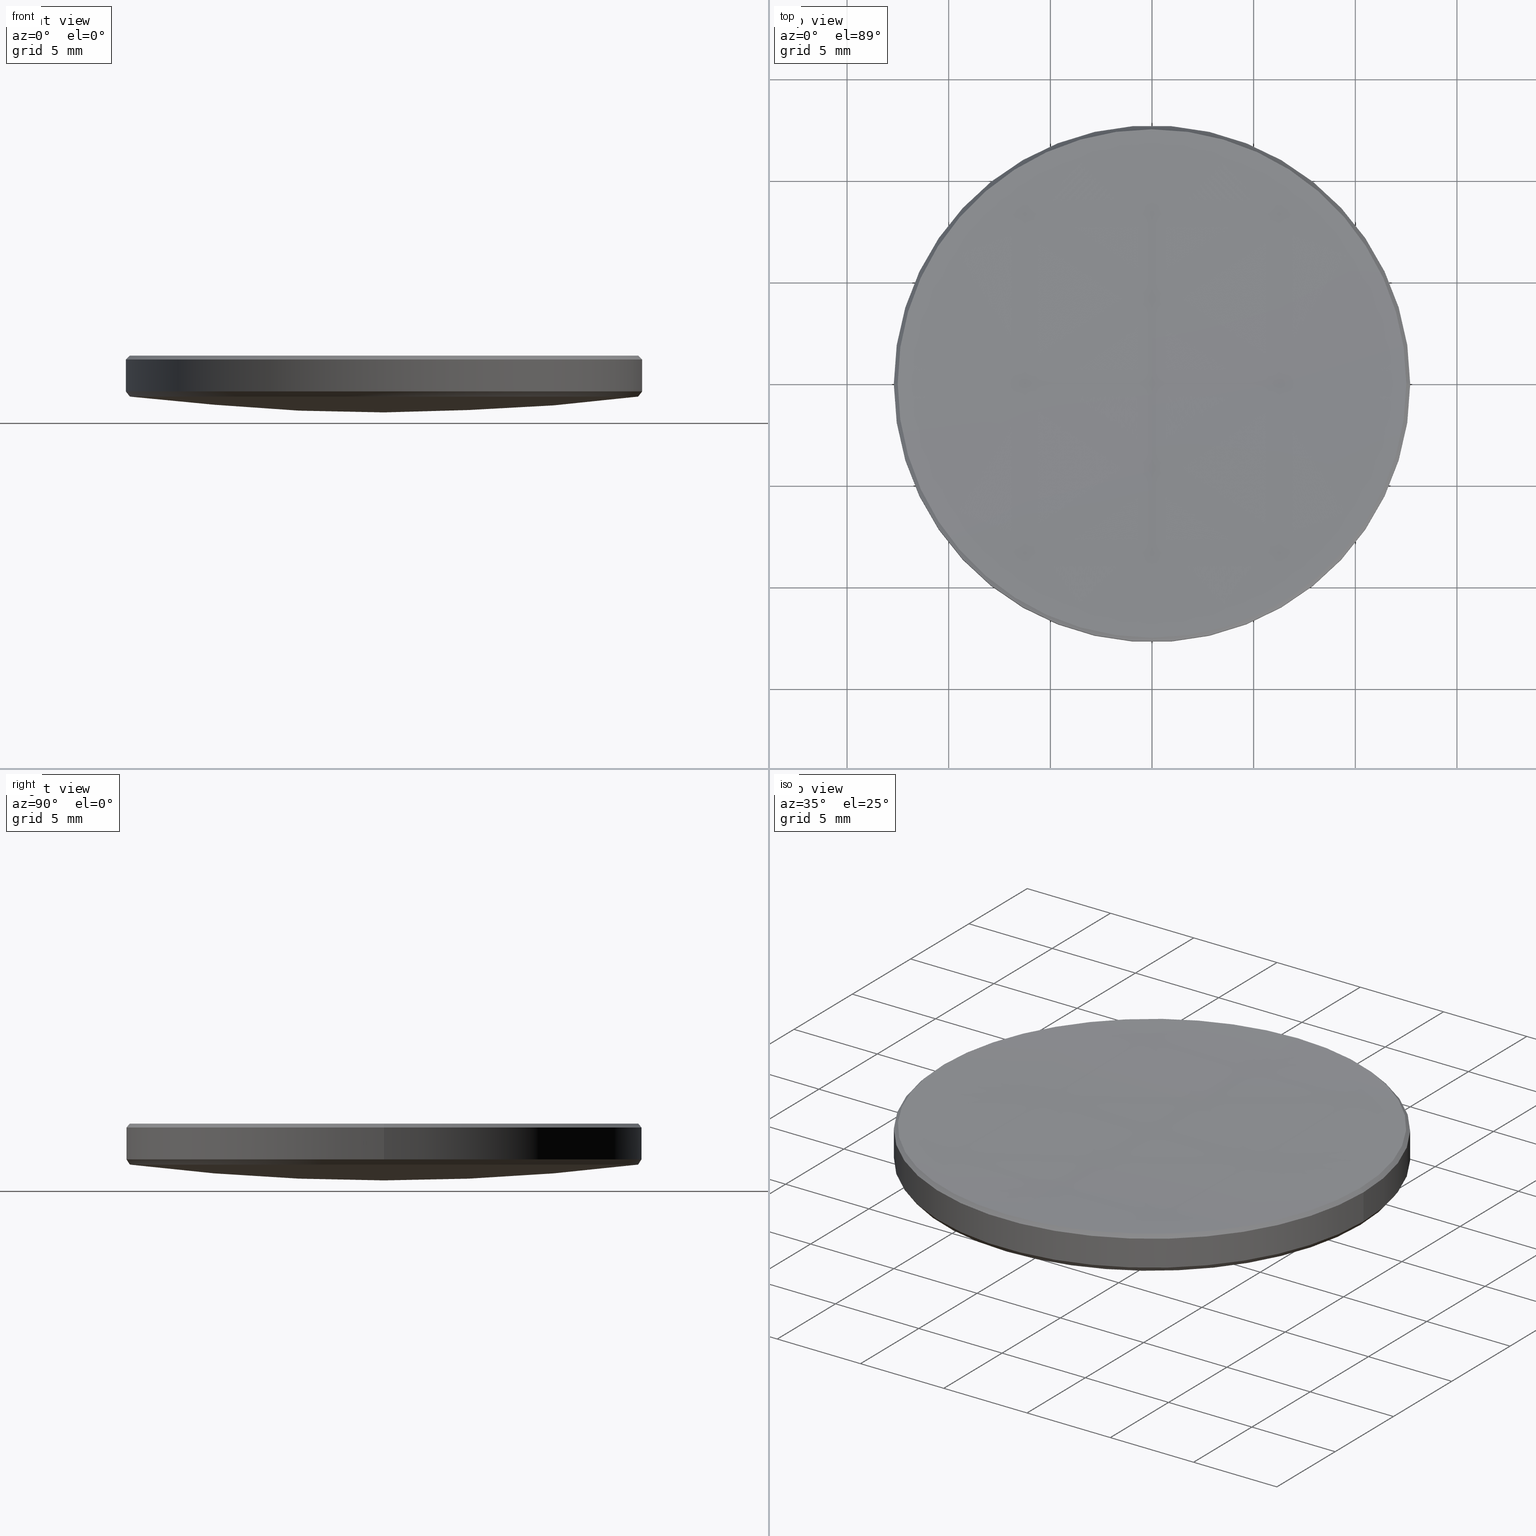
[diagram: canonical four-view strip — front | top / right | iso, engineering-drawing reading convention]
A machine part, canonical four-view strip (front | top / right | iso — engineering-drawing reading convention). The complete STEP part file that produces these views, byte-faithful:
ISO-10303-21;
HEADER;
FILE_DESCRIPTION (( 'STEP AP214' ),
    '1' );
FILE_NAME ('GLM1-025B-300-VIS.STEP',
    '2024-08-09T02:19:47',
    ( 'Windows User' ),
    ( 'P R C' ),
    'SwSTEP 2.0',
    'SolidWorks 2022',
    '' );
FILE_SCHEMA (( 'AUTOMOTIVE_DESIGN' ));
ENDSEC;

DATA;
#1 = VECTOR ( 'NONE', #92, 1000.000000000000000 ) ;
#2 = CIRCLE ( 'NONE', #8, 12.50176226215777930 ) ;
#3 = ORIENTED_EDGE ( 'NONE', *, *, #305, .F. ) ;
#4 = DIRECTION ( 'NONE',  ( 0.000000000000000000, 1.000000000000000000, 0.000000000000000000 ) ) ;
#5 = VERTEX_POINT ( 'NONE', #322 ) ;
#6 = DIRECTION ( 'NONE',  ( 1.000000000000000000, 0.000000000000000000, 0.000000000000000000 ) ) ;
#7 = AXIS2_PLACEMENT_3D ( 'NONE', #175, #145, #268 ) ;
#8 = AXIS2_PLACEMENT_3D ( 'NONE', #143, #242, #31 ) ;
#9 = ORIENTED_EDGE ( 'NONE', *, *, #236, .F. ) ;
#10 = DIRECTION ( 'NONE',  ( 0.000000000000000000, 0.000000000000000000, -1.000000000000000000 ) ) ;
#11 = ORIENTED_EDGE ( 'NONE', *, *, #291, .T. ) ;
#12 = CARTESIAN_POINT ( 'NONE',  ( 0.000000000000000000, 0.000000000000000000, 104.0874722430335027 ) ) ;
#13 = ORIENTED_EDGE ( 'NONE', *, *, #52, .F. ) ;
#14 = FACE_OUTER_BOUND ( 'NONE', #113, .T. ) ;
#15 = CIRCLE ( 'NONE', #109, 12.50838802109486103 ) ;
#16 = ORIENTED_EDGE ( 'NONE', *, *, #23, .F. ) ;
#17 = AXIS2_PLACEMENT_3D ( 'NONE', #60, #94, #266 ) ;
#18 = EDGE_CURVE ( 'NONE', #253, #30, #66, .T. ) ;
#19 =( NAMED_UNIT ( * ) PLANE_ANGLE_UNIT ( ) SI_UNIT ( $, .RADIAN. ) );
#20 = CARTESIAN_POINT ( 'NONE',  ( 0.000000000000000000, 6.177730778298823983E-15, 3.197472243033488759 ) ) ;
#21 = DIRECTION ( 'NONE',  ( -0.000000000000000000, -0.000000000000000000, 1.000000000000000000 ) ) ;
#22 = PRODUCT_DEFINITION_FORMATION_WITH_SPECIFIED_SOURCE ( '�κ�', '', #126, .NOT_KNOWN. ) ;
#23 = EDGE_CURVE ( 'NONE', #284, #35, #49, .T. ) ;
#24 = PRODUCT_DEFINITION_CONTEXT ( 'detailed design', #167, 'design' ) ;
#25 = AXIS2_PLACEMENT_3D ( 'NONE', #213, #59, #4 ) ;
#26 = EDGE_CURVE ( 'NONE', #191, #30, #300, .T. ) ;
#27 = VERTEX_POINT ( 'NONE', #42 ) ;
#28 = DIRECTION ( 'NONE',  ( -1.224646799147353454E-16, -1.000000000000000000, 0.000000000000000000 ) ) ;
#29 = ORIENTED_EDGE ( 'NONE', *, *, #26, .F. ) ;
#30 = VERTEX_POINT ( 'NONE', #319 ) ;
#31 = DIRECTION ( 'NONE',  ( 1.000000000000000000, 0.000000000000000000, 0.000000000000000000 ) ) ;
#32 = EDGE_LOOP ( 'NONE', ( #187, #208, #118, #144, #243 ) ) ;
#33 = PRODUCT_DEFINITION ( 'δ֪', '', #22, #24 ) ;
#34 = SPHERICAL_SURFACE ( 'NONE', #329, 100.8900000000000006 ) ;
#35 = VERTEX_POINT ( 'NONE', #64 ) ;
#36 = CARTESIAN_POINT ( 'NONE',  ( -12.69999999999999929, 1.555301434917138433E-15, 4.230902662384877999 ) ) ;
#37 = DIRECTION ( 'NONE',  ( 0.000000000000000000, 0.000000000000000000, -1.000000000000000000 ) ) ;
#38 = ORIENTED_EDGE ( 'NONE', *, *, #105, .F. ) ;
#39 = CARTESIAN_POINT ( 'NONE',  ( 12.50838802109488590, 1.531835735252694865E-15, 5.991611978905131863 ) ) ;
#40 = CARTESIAN_POINT ( 'NONE',  ( 0.000000000000000000, 0.000000000000000000, 104.0874722430335027 ) ) ;
#41 = CONICAL_SURFACE ( 'NONE', #115, 12.69999999999999929, 0.6591836576304348494 ) ;
#42 = CARTESIAN_POINT ( 'NONE',  ( -12.50176226215777930, 1.543162874361204192E-15, 3.975045240485544529 ) ) ;
#43 = DIRECTION ( 'NONE',  ( -0.000000000000000000, -0.000000000000000000, 1.000000000000000000 ) ) ;
#44 =( NAMED_UNIT ( * ) PLANE_ANGLE_UNIT ( ) SI_UNIT ( $, .RADIAN. ) );
#45 = FACE_OUTER_BOUND ( 'NONE', #238, .T. ) ;
#46 = FILL_AREA_STYLE ('',( #51 ) ) ;
#47 = CARTESIAN_POINT ( 'NONE',  ( 0.000000000000000000, 1.764716037571336072E-14, 5.720040983603680296 ) ) ;
#48 = ADVANCED_BREP_SHAPE_REPRESENTATION ( 'GLM1-025B-300-VIS', ( #135, #95 ), #85 ) ;
#49 = CIRCLE ( 'NONE', #183, 12.50838802109486103 ) ;
#50 = COLOUR_RGB ( '',1.000000000000000000, 1.000000000000000000, 1.000000000000000000 ) ;
#51 = FILL_AREA_STYLE_COLOUR ( '', #50 ) ;
#52 = EDGE_CURVE ( 'NONE', #284, #58, #70, .T. ) ;
#53 = ORIENTED_EDGE ( 'NONE', *, *, #97, .T. ) ;
#54 = EDGE_CURVE ( 'NONE', #58, #191, #244, .T. ) ;
#55 = ORIENTED_EDGE ( 'NONE', *, *, #105, .T. ) ;
#56 = CIRCLE ( 'NONE', #89, 288.1999999999999886 ) ;
#57 = FACE_OUTER_BOUND ( 'NONE', #216, .T. ) ;
#58 = VERTEX_POINT ( 'NONE', #100 ) ;
#59 = DIRECTION ( 'NONE',  ( -1.000000000000000000, 0.000000000000000000, 0.000000000000000000 ) ) ;
#60 = CARTESIAN_POINT ( 'NONE',  ( 0.000000000000000000, 0.000000000000000000, 5.800000000000027356 ) ) ;
#61 = ADVANCED_FACE ( 'NONE', ( #217 ), #202, .T. ) ;
#62 = ORIENTED_EDGE ( 'NONE', *, *, #114, .T. ) ;
#63 = CARTESIAN_POINT ( 'NONE',  ( 0.000000000000000000, 0.000000000000000000, 3.975045240485544529 ) ) ;
#64 = CARTESIAN_POINT ( 'NONE',  ( -1.531835735252623078E-15, -12.50838802109430148, 5.991611978905075908 ) ) ;
#65 = DIRECTION ( 'NONE',  ( 0.000000000000000000, 1.000000000000000000, 0.000000000000000000 ) ) ;
#66 = LINE ( 'NONE', #267, #1 ) ;
#67 = LINE ( 'NONE', #39, #138 ) ;
#68 =( NAMED_UNIT ( * ) PLANE_ANGLE_UNIT ( ) SI_UNIT ( $, .RADIAN. ) );
#69 = EDGE_LOOP ( 'NONE', ( #3, #271, #11, #232 ) ) ;
#70 = LINE ( 'NONE', #127, #289 ) ;
#71 =( NAMED_UNIT ( * ) SI_UNIT ( $, .STERADIAN. ) SOLID_ANGLE_UNIT ( ) );
#72 = CIRCLE ( 'NONE', #292, 12.69999999999999929 ) ;
#73 = DIRECTION ( 'NONE',  ( -0.000000000000000000, -0.000000000000000000, -1.000000000000000000 ) ) ;
#74 = SPHERICAL_SURFACE ( 'NONE', #205, 100.8900000000000006 ) ;
#75 = DIRECTION ( 'NONE',  ( 0.7071067811865635599, 8.659560562355128841E-17, -0.7071067811865314745 ) ) ;
#76 = APPLICATION_PROTOCOL_DEFINITION ( 'draft international standard', 'automotive_design', 1998, #167 ) ;
#77 = EDGE_CURVE ( 'NONE', #27, #191, #146, .T. ) ;
#78 = CARTESIAN_POINT ( 'NONE',  ( 0.000000000000000000, 0.000000000000000000, 5.991611978905075908 ) ) ;
#79 = CONICAL_SURFACE ( 'NONE', #177, 12.50838802109488590, 0.7853981633974710386 ) ;
#80 = AXIS2_PLACEMENT_3D ( 'NONE', #63, #184, #186 ) ;
#81 = ADVANCED_FACE ( 'NONE', ( #45 ), #93, .T. ) ;
#82 = UNCERTAINTY_MEASURE_WITH_UNIT (LENGTH_MEASURE( 1.000000000000000082E-05 ), #221, 'distance_accuracy_value', 'NONE');
#83 = CIRCLE ( 'NONE', #254, 12.50176226215777930 ) ;
#84 = CIRCLE ( 'NONE', #250, 12.50838802109486103 ) ;
#85 =( GEOMETRIC_REPRESENTATION_CONTEXT ( 3 ) GLOBAL_UNCERTAINTY_ASSIGNED_CONTEXT ( ( #233 ) ) GLOBAL_UNIT_ASSIGNED_CONTEXT ( ( #303, #68, #71 ) ) REPRESENTATION_CONTEXT ( 'NONE', 'WORKASPACE' ) );
#86 = EDGE_LOOP ( 'NONE', ( #111, #257, #235, #164 ) ) ;
#87 = CARTESIAN_POINT ( 'NONE',  ( -12.69999999999999929, 0.000000000000000000, 4.230902662384877999 ) ) ;
#88 = VERTEX_POINT ( 'NONE', #47 ) ;
#89 = AXIS2_PLACEMENT_3D ( 'NONE', #158, #259, #313 ) ;
#90 = DIRECTION ( 'NONE',  ( 1.000000000000000000, 0.000000000000000000, 0.000000000000000000 ) ) ;
#91 = VERTEX_POINT ( 'NONE', #20 ) ;
#92 = DIRECTION ( 'NONE',  ( -0.000000000000000000, -0.000000000000000000, -1.000000000000000000 ) ) ;
#93 = CONICAL_SURFACE ( 'NONE', #252, 12.50838802109488590, 0.7853981633974710386 ) ;
#94 = DIRECTION ( 'NONE',  ( 0.000000000000000000, 0.000000000000000000, -1.000000000000000000 ) ) ;
#95 = AXIS2_PLACEMENT_3D ( 'NONE', #104, #151, #199 ) ;
#96 = ORIENTED_EDGE ( 'NONE', *, *, #178, .F. ) ;
#97 = EDGE_CURVE ( 'NONE', #5, #30, #106, .T. ) ;
#98 = CARTESIAN_POINT ( 'NONE',  ( 0.000000000000000000, 0.000000000000000000, 3.975045240485544529 ) ) ;
#99 = ORIENTED_EDGE ( 'NONE', *, *, #195, .F. ) ;
#100 = CARTESIAN_POINT ( 'NONE',  ( -12.69999999999999929, 0.000000000000000000, 5.800000000000027356 ) ) ;
#101 = PRODUCT_DEFINITION_SHAPE ( 'NONE', 'NONE',  #33 ) ;
#102 =( GEOMETRIC_REPRESENTATION_CONTEXT ( 3 ) GLOBAL_UNCERTAINTY_ASSIGNED_CONTEXT ( ( #82 ) ) GLOBAL_UNIT_ASSIGNED_CONTEXT ( ( #221, #19, #249 ) ) REPRESENTATION_CONTEXT ( 'NONE', 'WORKASPACE' ) );
#103 = CARTESIAN_POINT ( 'NONE',  ( -12.69999999999999929, 0.000000000000000000, 10.00000000000000000 ) ) ;
#104 = CARTESIAN_POINT ( 'NONE',  ( 0.000000000000000000, 0.000000000000000000, 0.000000000000000000 ) ) ;
#105 = EDGE_CURVE ( 'NONE', #210, #27, #83, .T. ) ;
#106 = LINE ( 'NONE', #222, #204 ) ;
#107 = CLOSED_SHELL ( 'NONE', ( #156, #108, #206, #281, #332, #61, #312, #181, #120, #81 ) ) ;
#108 = ADVANCED_FACE ( 'NONE', ( #304 ), #41, .T. ) ;
#109 = AXIS2_PLACEMENT_3D ( 'NONE', #188, #310, #6 ) ;
#110 = CARTESIAN_POINT ( 'NONE',  ( 0.000000000000000000, 12.50176226215772068, 3.975045240485544529 ) ) ;
#111 = ORIENTED_EDGE ( 'NONE', *, *, #18, .F. ) ;
#112 = CARTESIAN_POINT ( 'NONE',  ( -1.531024313805262852E-15, -12.50176226215772068, 3.975045240485544529 ) ) ;
#113 = EDGE_LOOP ( 'NONE', ( #263, #159, #230, #317 ) ) ;
#114 = EDGE_CURVE ( 'NONE', #35, #189, #84, .T. ) ;
#115 = AXIS2_PLACEMENT_3D ( 'NONE', #325, #43, #298 ) ;
#116 = DIRECTION ( 'NONE',  ( -0.000000000000000000, -0.000000000000000000, 1.000000000000000000 ) ) ;
#117 = ORIENTED_EDGE ( 'NONE', *, *, #178, .T. ) ;
#118 = ORIENTED_EDGE ( 'NONE', *, *, #280, .F. ) ;
#119 = CARTESIAN_POINT ( 'NONE',  ( 12.50838802109486103, 1.543568585084915170E-15, 5.991611978905075908 ) ) ;
#120 = ADVANCED_FACE ( 'NONE', ( #197 ), #278, .T. ) ;
#121 = VERTEX_POINT ( 'NONE', #192 ) ;
#122 = AXIS2_PLACEMENT_3D ( 'NONE', #273, #166, #290 ) ;
#123 = ORIENTED_EDGE ( 'NONE', *, *, #305, .T. ) ;
#124 = FILL_AREA_STYLE_COLOUR ( '', #198 ) ;
#125 = DIRECTION ( 'NONE',  ( -0.7071067811865635599, 0.000000000000000000, -0.7071067811865314745 ) ) ;
#126 = PRODUCT ( 'GLM1-025B-300-VIS', 'GLM1-025B-300-VIS', '', ( #296 ) ) ;
#127 = CARTESIAN_POINT ( 'NONE',  ( -12.50838802109488590, 0.000000000000000000, 5.991611978905131863 ) ) ;
#128 = DIRECTION ( 'NONE',  ( -0.000000000000000000, -0.000000000000000000, -1.000000000000000000 ) ) ;
#129 = CIRCLE ( 'NONE', #314, 12.69999999999999929 ) ;
#130 = MECHANICAL_DESIGN_GEOMETRIC_PRESENTATION_REPRESENTATION (  '', ( #224 ), #102 ) ;
#131 = ORIENTED_EDGE ( 'NONE', *, *, #212, .F. ) ;
#132 = FACE_OUTER_BOUND ( 'NONE', #185, .T. ) ;
#133 = EDGE_CURVE ( 'NONE', #27, #297, #262, .T. ) ;
#134 = EDGE_LOOP ( 'NONE', ( #294, #38, #9, #53, #29 ) ) ;
#135 = MANIFOLD_SOLID_BREP ( '����1', #107 ) ;
#136 = CARTESIAN_POINT ( 'NONE',  ( 0.000000000000000000, 0.000000000000000000, 4.230902662384877999 ) ) ;
#137 = ORIENTED_EDGE ( 'NONE', *, *, #152, .F. ) ;
#138 = VECTOR ( 'NONE', #75, 1000.000000000000000 ) ;
#139 = FACE_OUTER_BOUND ( 'NONE', #69, .T. ) ;
#140 = ORIENTED_EDGE ( 'NONE', *, *, #172, .T. ) ;
#141 = CARTESIAN_POINT ( 'NONE',  ( 0.000000000000000000, 0.000000000000000000, 5.991611978905075908 ) ) ;
#142 = DIRECTION ( 'NONE',  ( -0.6124717436197836262, 7.500615603921663668E-17, 0.7904924814742655403 ) ) ;
#143 = CARTESIAN_POINT ( 'NONE',  ( 0.000000000000000000, 0.000000000000000000, 3.975045240485544529 ) ) ;
#144 = ORIENTED_EDGE ( 'NONE', *, *, #97, .F. ) ;
#145 = DIRECTION ( 'NONE',  ( -0.000000000000000000, -0.000000000000000000, 1.000000000000000000 ) ) ;
#146 = LINE ( 'NONE', #36, #228 ) ;
#147 =( NAMED_UNIT ( * ) SI_UNIT ( $, .STERADIAN. ) SOLID_ANGLE_UNIT ( ) );
#148 = CARTESIAN_POINT ( 'NONE',  ( 0.000000000000000000, 0.000000000000000000, 10.00000000000000000 ) ) ;
#149 = DIRECTION ( 'NONE',  ( 0.000000000000000000, 0.000000000000000000, -1.000000000000000000 ) ) ;
#150 = CIRCLE ( 'NONE', #80, 12.50176226215777930 ) ;
#151 = DIRECTION ( 'NONE',  ( 0.000000000000000000, 0.000000000000000000, 1.000000000000000000 ) ) ;
#152 = EDGE_CURVE ( 'NONE', #189, #253, #67, .T. ) ;
#153 = ORIENTED_EDGE ( 'NONE', *, *, #114, .F. ) ;
#154 = ORIENTED_EDGE ( 'NONE', *, *, #220, .F. ) ;
#155 = CIRCLE ( 'NONE', #264, 288.1999999999999886 ) ;
#156 = ADVANCED_FACE ( 'NONE', ( #225 ), #79, .T. ) ;
#157 = SPHERICAL_SURFACE ( 'NONE', #306, 288.1999999999999886 ) ;
#158 = CARTESIAN_POINT ( 'NONE',  ( 0.000000000000000000, 0.000000000000000000, 293.9200409836037124 ) ) ;
#159 = ORIENTED_EDGE ( 'NONE', *, *, #18, .T. ) ;
#160 = CARTESIAN_POINT ( 'NONE',  ( -12.50838802109486103, 0.000000000000000000, 5.991611978905075908 ) ) ;
#161 = AXIS2_PLACEMENT_3D ( 'NONE', #194, #128, #241 ) ;
#162 = MECHANICAL_DESIGN_GEOMETRIC_PRESENTATION_REPRESENTATION (  '', ( #173 ), #229 ) ;
#163 = DIRECTION ( 'NONE',  ( 1.000000000000000000, 0.000000000000000000, 0.000000000000000000 ) ) ;
#164 = ORIENTED_EDGE ( 'NONE', *, *, #26, .T. ) ;
#165 = DIRECTION ( 'NONE',  ( 1.000000000000000000, 0.000000000000000000, 0.000000000000000000 ) ) ;
#166 = DIRECTION ( 'NONE',  ( -0.000000000000000000, -0.000000000000000000, 1.000000000000000000 ) ) ;
#167 = APPLICATION_CONTEXT ( 'automotive_design' ) ;
#168 = SURFACE_STYLE_FILL_AREA ( #302 ) ;
#169 = DIRECTION ( 'NONE',  ( -0.000000000000000000, -0.000000000000000000, 1.000000000000000000 ) ) ;
#170 = DIRECTION ( 'NONE',  ( 1.000000000000000000, 0.000000000000000000, 0.000000000000000000 ) ) ;
#171 = PRESENTATION_STYLE_ASSIGNMENT (( #272 ) ) ;
#172 = EDGE_CURVE ( 'NONE', #189, #121, #179, .T. ) ;
#173 = STYLED_ITEM ( 'NONE', ( #171 ), #48 ) ;
#174 = DIRECTION ( 'NONE',  ( 0.000000000000000000, 1.000000000000000000, 0.000000000000000000 ) ) ;
#175 = CARTESIAN_POINT ( 'NONE',  ( 0.000000000000000000, 0.000000000000000000, 4.230902662384877999 ) ) ;
#176 = SHAPE_DEFINITION_REPRESENTATION ( #101, #48 ) ;
#177 = AXIS2_PLACEMENT_3D ( 'NONE', #215, #318, #209 ) ;
#178 = EDGE_CURVE ( 'NONE', #121, #284, #15, .T. ) ;
#179 = CIRCLE ( 'NONE', #321, 12.50838802109486103 ) ;
#180 = ORIENTED_EDGE ( 'NONE', *, *, #152, .T. ) ;
#181 = ADVANCED_FACE ( 'NONE', ( #57 ), #316, .F. ) ;
#182 = ORIENTED_EDGE ( 'NONE', *, *, #220, .T. ) ;
#183 = AXIS2_PLACEMENT_3D ( 'NONE', #141, #169, #240 ) ;
#184 = DIRECTION ( 'NONE',  ( 0.000000000000000000, 0.000000000000000000, -1.000000000000000000 ) ) ;
#185 = EDGE_LOOP ( 'NONE', ( #131, #182, #62, #140 ) ) ;
#186 = DIRECTION ( 'NONE',  ( 1.000000000000000000, 0.000000000000000000, 0.000000000000000000 ) ) ;
#187 = ORIENTED_EDGE ( 'NONE', *, *, #133, .F. ) ;
#188 = CARTESIAN_POINT ( 'NONE',  ( 0.000000000000000000, 0.000000000000000000, 5.991611978905075908 ) ) ;
#189 = VERTEX_POINT ( 'NONE', #119 ) ;
#190 = CARTESIAN_POINT ( 'NONE',  ( 0.000000000000000000, 0.000000000000000000, 5.991611978905075908 ) ) ;
#191 = VERTEX_POINT ( 'NONE', #87 ) ;
#192 = CARTESIAN_POINT ( 'NONE',  ( 0.000000000000000000, 12.50838802109430148, 5.991611978905075908 ) ) ;
#193 = ORIENTED_EDGE ( 'NONE', *, *, #269, .F. ) ;
#194 = CARTESIAN_POINT ( 'NONE',  ( 0.000000000000000000, 0.000000000000000000, 10.00000000000000000 ) ) ;
#195 = EDGE_CURVE ( 'NONE', #91, #297, #218, .T. ) ;
#196 = DIRECTION ( 'NONE',  ( -0.000000000000000000, -0.000000000000000000, -1.000000000000000000 ) ) ;
#197 = FACE_OUTER_BOUND ( 'NONE', #134, .T. ) ;
#198 = COLOUR_RGB ( '',1.000000000000000000, 1.000000000000000000, 1.000000000000000000 ) ;
#199 = DIRECTION ( 'NONE',  ( 1.000000000000000000, 0.000000000000000000, 0.000000000000000000 ) ) ;
#200 = CARTESIAN_POINT ( 'NONE',  ( 0.000000000000000000, 0.000000000000000000, 3.975045240485544529 ) ) ;
#201 = APPLICATION_PROTOCOL_DEFINITION ( 'draft international standard', 'automotive_design', 1998, #258 ) ;
#202 = CYLINDRICAL_SURFACE ( 'NONE', #161, 12.69999999999999929 ) ;
#203 = PRODUCT_RELATED_PRODUCT_CATEGORY ( 'part', '', ( #126 ) ) ;
#204 = VECTOR ( 'NONE', #223, 1000.000000000000000 ) ;
#205 = AXIS2_PLACEMENT_3D ( 'NONE', #40, #251, #174 ) ;
#206 = ADVANCED_FACE ( 'NONE', ( #132 ), #157, .F. ) ;
#207 = CARTESIAN_POINT ( 'NONE',  ( 0.000000000000000000, 0.000000000000000000, 104.0874722430335027 ) ) ;
#208 = ORIENTED_EDGE ( 'NONE', *, *, #77, .T. ) ;
#209 = DIRECTION ( 'NONE',  ( -1.000000000000000000, 0.000000000000000000, 0.000000000000000000 ) ) ;
#210 = VERTEX_POINT ( 'NONE', #112 ) ;
#211 = FACE_OUTER_BOUND ( 'NONE', #311, .T. ) ;
#212 = EDGE_CURVE ( 'NONE', #88, #121, #155, .T. ) ;
#213 = CARTESIAN_POINT ( 'NONE',  ( 0.000000000000000000, 0.000000000000000000, 293.9200409836037124 ) ) ;
#214 = ORIENTED_EDGE ( 'NONE', *, *, #52, .T. ) ;
#215 = CARTESIAN_POINT ( 'NONE',  ( 0.000000000000000000, 0.000000000000000000, 5.991611978905131863 ) ) ;
#216 = EDGE_LOOP ( 'NONE', ( #154, #219, #117, #309 ) ) ;
#217 = FACE_OUTER_BOUND ( 'NONE', #86, .T. ) ;
#218 = CIRCLE ( 'NONE', #328, 100.8900000000000006 ) ;
#219 = ORIENTED_EDGE ( 'NONE', *, *, #212, .T. ) ;
#220 = EDGE_CURVE ( 'NONE', #88, #35, #56, .T. ) ;
#221 =( LENGTH_UNIT ( ) NAMED_UNIT ( * ) SI_UNIT ( .MILLI., .METRE. ) );
#222 = CARTESIAN_POINT ( 'NONE',  ( 12.69999999999999929, 0.000000000000000000, 4.230902662384877999 ) ) ;
#223 = DIRECTION ( 'NONE',  ( 0.6124717436197836262, 0.000000000000000000, 0.7904924814742655403 ) ) ;
#224 = STYLED_ITEM ( 'NONE', ( #331 ), #135 ) ;
#225 = FACE_OUTER_BOUND ( 'NONE', #260, .T. ) ;
#226 = AXIS2_PLACEMENT_3D ( 'NONE', #98, #323, #326 ) ;
#227 = EDGE_CURVE ( 'NONE', #58, #253, #129, .T. ) ;
#228 = VECTOR ( 'NONE', #142, 1000.000000000000000 ) ;
#229 =( GEOMETRIC_REPRESENTATION_CONTEXT ( 3 ) GLOBAL_UNCERTAINTY_ASSIGNED_CONTEXT ( ( #315 ) ) GLOBAL_UNIT_ASSIGNED_CONTEXT ( ( #279, #44, #147 ) ) REPRESENTATION_CONTEXT ( 'NONE', 'WORKASPACE' ) );
#230 = ORIENTED_EDGE ( 'NONE', *, *, #280, .T. ) ;
#231 = CARTESIAN_POINT ( 'NONE',  ( 0.000000000000000000, 0.000000000000000000, 293.9200409836037124 ) ) ;
#232 = ORIENTED_EDGE ( 'NONE', *, *, #236, .T. ) ;
#233 = UNCERTAINTY_MEASURE_WITH_UNIT (LENGTH_MEASURE( 1.000000000000000082E-05 ), #303, 'distance_accuracy_value', 'NONE');
#234 = DIRECTION ( 'NONE',  ( -1.000000000000000000, 0.000000000000000000, 0.000000000000000000 ) ) ;
#235 = ORIENTED_EDGE ( 'NONE', *, *, #54, .T. ) ;
#236 = EDGE_CURVE ( 'NONE', #5, #210, #150, .T. ) ;
#237 = CARTESIAN_POINT ( 'NONE',  ( 12.69999999999999929, 1.555301434917138433E-15, 5.800000000000027356 ) ) ;
#238 = EDGE_LOOP ( 'NONE', ( #137, #153, #16, #214, #193 ) ) ;
#239 = CARTESIAN_POINT ( 'NONE',  ( 0.000000000000000000, 0.000000000000000000, 293.9200409836037124 ) ) ;
#240 = DIRECTION ( 'NONE',  ( 1.000000000000000000, 0.000000000000000000, 0.000000000000000000 ) ) ;
#241 = DIRECTION ( 'NONE',  ( -1.000000000000000000, 0.000000000000000000, 0.000000000000000000 ) ) ;
#242 = DIRECTION ( 'NONE',  ( 0.000000000000000000, 0.000000000000000000, -1.000000000000000000 ) ) ;
#243 = ORIENTED_EDGE ( 'NONE', *, *, #291, .F. ) ;
#244 = LINE ( 'NONE', #103, #283 ) ;
#245 = PRESENTATION_LAYER_ASSIGNMENT (  '', '', ( #224 ) ) ;
#246 = SURFACE_STYLE_FILL_AREA ( #46 ) ;
#247 = SURFACE_STYLE_USAGE ( .BOTH. , #299 ) ;
#248 = DIRECTION ( 'NONE',  ( -1.000000000000000000, 0.000000000000000000, 0.000000000000000000 ) ) ;
#249 =( NAMED_UNIT ( * ) SI_UNIT ( $, .STERADIAN. ) SOLID_ANGLE_UNIT ( ) );
#250 = AXIS2_PLACEMENT_3D ( 'NONE', #78, #21, #274 ) ;
#251 = DIRECTION ( 'NONE',  ( -1.000000000000000000, 0.000000000000000000, 0.000000000000000000 ) ) ;
#252 = AXIS2_PLACEMENT_3D ( 'NONE', #327, #149, #276 ) ;
#253 = VERTEX_POINT ( 'NONE', #237 ) ;
#254 = AXIS2_PLACEMENT_3D ( 'NONE', #200, #295, #170 ) ;
#255 = ORIENTED_EDGE ( 'NONE', *, *, #133, .T. ) ;
#256 = DIRECTION ( 'NONE',  ( -1.000000000000000000, 1.224646799147353207E-16, 0.000000000000000000 ) ) ;
#257 = ORIENTED_EDGE ( 'NONE', *, *, #269, .T. ) ;
#258 = APPLICATION_CONTEXT ( 'automotive_design' ) ;
#259 = DIRECTION ( 'NONE',  ( -1.000000000000000000, 1.224646799147353207E-16, 0.000000000000000000 ) ) ;
#260 = EDGE_LOOP ( 'NONE', ( #287, #180, #324, #13, #96 ) ) ;
#261 = DIRECTION ( 'NONE',  ( 1.000000000000000000, -0.000000000000000000, 0.000000000000000000 ) ) ;
#262 = CIRCLE ( 'NONE', #226, 12.50176226215777930 ) ;
#263 = ORIENTED_EDGE ( 'NONE', *, *, #227, .T. ) ;
#264 = AXIS2_PLACEMENT_3D ( 'NONE', #231, #165, #37 ) ;
#265 = PRESENTATION_LAYER_ASSIGNMENT (  '', '', ( #173 ) ) ;
#266 = DIRECTION ( 'NONE',  ( 1.000000000000000000, 0.000000000000000000, 0.000000000000000000 ) ) ;
#267 = CARTESIAN_POINT ( 'NONE',  ( 12.69999999999999929, 1.555301434917138433E-15, 10.00000000000000000 ) ) ;
#268 = DIRECTION ( 'NONE',  ( 1.000000000000000000, 0.000000000000000000, 0.000000000000000000 ) ) ;
#269 = EDGE_CURVE ( 'NONE', #253, #58, #301, .T. ) ;
#270 = CARTESIAN_POINT ( 'NONE',  ( 0.000000000000000000, 0.000000000000000000, 5.800000000000027356 ) ) ;
#271 = ORIENTED_EDGE ( 'NONE', *, *, #195, .T. ) ;
#272 = SURFACE_STYLE_USAGE ( .BOTH. , #277 ) ;
#273 = CARTESIAN_POINT ( 'NONE',  ( 0.000000000000000000, 0.000000000000000000, 4.230902662384877999 ) ) ;
#274 = DIRECTION ( 'NONE',  ( 1.000000000000000000, 0.000000000000000000, 0.000000000000000000 ) ) ;
#275 = CIRCLE ( 'NONE', #308, 100.8900000000000006 ) ;
#276 = DIRECTION ( 'NONE',  ( -1.000000000000000000, 0.000000000000000000, 0.000000000000000000 ) ) ;
#277 = SURFACE_SIDE_STYLE ('',( #246 ) ) ;
#278 = CONICAL_SURFACE ( 'NONE', #7, 12.69999999999999929, 0.6591836576304348494 ) ;
#279 =( LENGTH_UNIT ( ) NAMED_UNIT ( * ) SI_UNIT ( .MILLI., .METRE. ) );
#280 = EDGE_CURVE ( 'NONE', #30, #191, #72, .T. ) ;
#281 = ADVANCED_FACE ( 'NONE', ( #211 ), #34, .T. ) ;
#282 = DIRECTION ( 'NONE',  ( 0.000000000000000000, 1.000000000000000000, 0.000000000000000000 ) ) ;
#283 = VECTOR ( 'NONE', #73, 1000.000000000000000 ) ;
#284 = VERTEX_POINT ( 'NONE', #160 ) ;
#285 = DIRECTION ( 'NONE',  ( -0.000000000000000000, -0.000000000000000000, 1.000000000000000000 ) ) ;
#286 = DIRECTION ( 'NONE',  ( -1.000000000000000000, 0.000000000000000000, 0.000000000000000000 ) ) ;
#287 = ORIENTED_EDGE ( 'NONE', *, *, #172, .F. ) ;
#288 = DIRECTION ( 'NONE',  ( 0.000000000000000000, 0.000000000000000000, -1.000000000000000000 ) ) ;
#289 = VECTOR ( 'NONE', #125, 1000.000000000000000 ) ;
#290 = DIRECTION ( 'NONE',  ( -1.000000000000000000, 0.000000000000000000, 0.000000000000000000 ) ) ;
#291 = EDGE_CURVE ( 'NONE', #297, #5, #2, .T. ) ;
#292 = AXIS2_PLACEMENT_3D ( 'NONE', #136, #116, #234 ) ;
#293 = CARTESIAN_POINT ( 'NONE',  ( 0.000000000000000000, 0.000000000000000000, 104.0874722430335027 ) ) ;
#294 = ORIENTED_EDGE ( 'NONE', *, *, #77, .F. ) ;
#295 = DIRECTION ( 'NONE',  ( 0.000000000000000000, 0.000000000000000000, -1.000000000000000000 ) ) ;
#296 = PRODUCT_CONTEXT ( 'NONE', #258, 'mechanical' ) ;
#297 = VERTEX_POINT ( 'NONE', #110 ) ;
#298 = DIRECTION ( 'NONE',  ( 1.000000000000000000, 0.000000000000000000, 0.000000000000000000 ) ) ;
#299 = SURFACE_SIDE_STYLE ('',( #168 ) ) ;
#300 = CIRCLE ( 'NONE', #122, 12.69999999999999929 ) ;
#301 = CIRCLE ( 'NONE', #17, 12.69999999999999929 ) ;
#302 = FILL_AREA_STYLE ('',( #124 ) ) ;
#303 =( LENGTH_UNIT ( ) NAMED_UNIT ( * ) SI_UNIT ( .MILLI., .METRE. ) );
#304 = FACE_OUTER_BOUND ( 'NONE', #32, .T. ) ;
#305 = EDGE_CURVE ( 'NONE', #91, #210, #275, .T. ) ;
#306 = AXIS2_PLACEMENT_3D ( 'NONE', #239, #320, #282 ) ;
#307 = AXIS2_PLACEMENT_3D ( 'NONE', #148, #196, #248 ) ;
#308 = AXIS2_PLACEMENT_3D ( 'NONE', #207, #256, #28 ) ;
#309 = ORIENTED_EDGE ( 'NONE', *, *, #23, .T. ) ;
#310 = DIRECTION ( 'NONE',  ( -0.000000000000000000, -0.000000000000000000, 1.000000000000000000 ) ) ;
#311 = EDGE_LOOP ( 'NONE', ( #99, #123, #55, #255 ) ) ;
#312 = ADVANCED_FACE ( 'NONE', ( #139 ), #74, .T. ) ;
#313 = DIRECTION ( 'NONE',  ( -1.224646799147353207E-16, -1.000000000000000000, 0.000000000000000000 ) ) ;
#314 = AXIS2_PLACEMENT_3D ( 'NONE', #270, #288, #90 ) ;
#315 = UNCERTAINTY_MEASURE_WITH_UNIT (LENGTH_MEASURE( 1.000000000000000082E-05 ), #279, 'distance_accuracy_value', 'NONE');
#316 = SPHERICAL_SURFACE ( 'NONE', #25, 288.1999999999999886 ) ;
#317 = ORIENTED_EDGE ( 'NONE', *, *, #54, .F. ) ;
#318 = DIRECTION ( 'NONE',  ( 0.000000000000000000, 0.000000000000000000, -1.000000000000000000 ) ) ;
#319 = CARTESIAN_POINT ( 'NONE',  ( 12.69999999999999929, 1.555301434917138433E-15, 4.230902662384877999 ) ) ;
#320 = DIRECTION ( 'NONE',  ( -1.000000000000000000, 0.000000000000000000, 0.000000000000000000 ) ) ;
#321 = AXIS2_PLACEMENT_3D ( 'NONE', #190, #285, #163 ) ;
#322 = CARTESIAN_POINT ( 'NONE',  ( 12.50176226215777930, 0.000000000000000000, 3.975045240485544529 ) ) ;
#323 = DIRECTION ( 'NONE',  ( 0.000000000000000000, 0.000000000000000000, -1.000000000000000000 ) ) ;
#324 = ORIENTED_EDGE ( 'NONE', *, *, #227, .F. ) ;
#325 = CARTESIAN_POINT ( 'NONE',  ( 0.000000000000000000, 0.000000000000000000, 4.230902662384877999 ) ) ;
#326 = DIRECTION ( 'NONE',  ( 1.000000000000000000, 0.000000000000000000, 0.000000000000000000 ) ) ;
#327 = CARTESIAN_POINT ( 'NONE',  ( 0.000000000000000000, 0.000000000000000000, 5.991611978905131863 ) ) ;
#328 = AXIS2_PLACEMENT_3D ( 'NONE', #12, #261, #10 ) ;
#329 = AXIS2_PLACEMENT_3D ( 'NONE', #293, #286, #65 ) ;
#330 = CYLINDRICAL_SURFACE ( 'NONE', #307, 12.69999999999999929 ) ;
#331 = PRESENTATION_STYLE_ASSIGNMENT (( #247 ) ) ;
#332 = ADVANCED_FACE ( 'NONE', ( #14 ), #330, .T. ) ;
ENDSEC;
END-ISO-10303-21;
